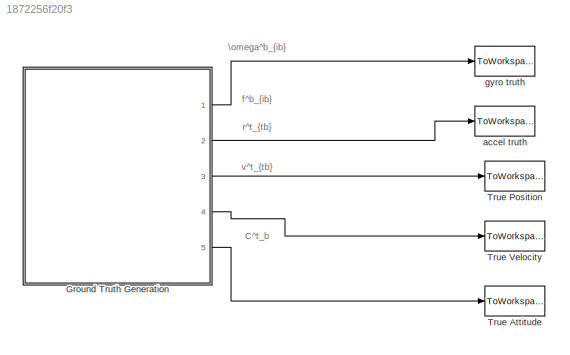
MODEL slx_1872256f20f3
KIND model
CONFIG AbsTol = auto
CONFIG EnableMultiTasking = on
CONFIG FixedStep = constants.dt
CONFIG MaxStep = auto
CONFIG MinStep = auto
CONFIG RelTol = 1e-3
CONFIG SampleTimeConstraint = Unconstrained
CONFIG Solver = ode1
CONFIG SolverName = ode1
CONFIG StartTime = 0.0
CONFIG StopTime = constants.t_end
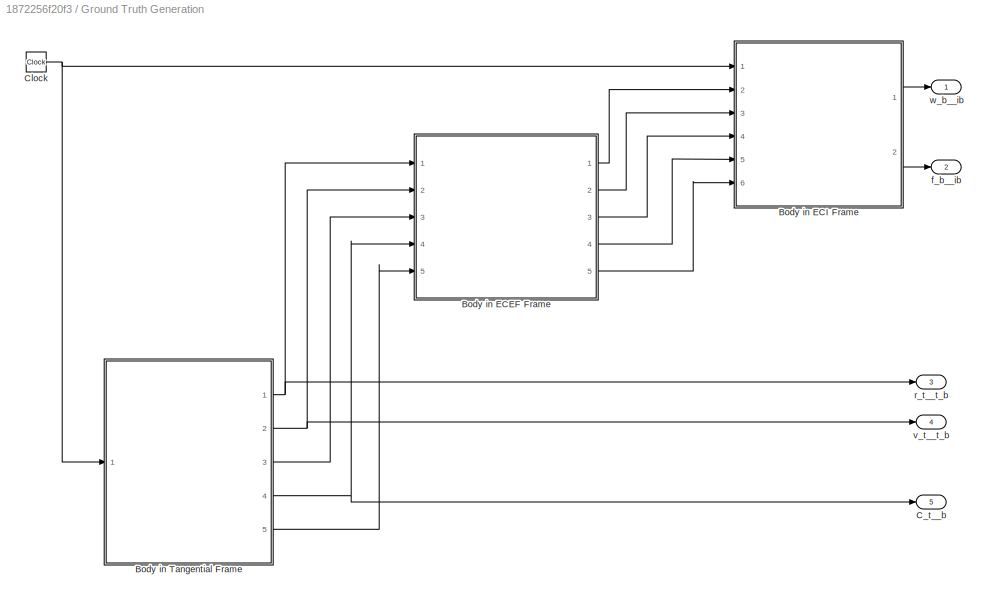
BLOCK [SubSystem] Ground Truth Generation
  Ports = [0, 5]
  RequestExecContextInheritance = off
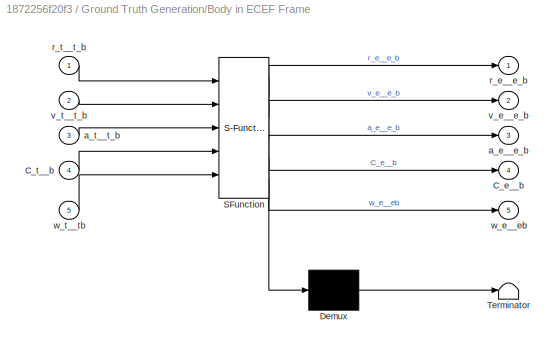
BLOCK [SubSystem] Ground Truth Generation/Body in ECEF Frame
  ErrorFcn = Stateflow.Translate.translate
  PermitHierarchicalResolution = ExplicitOnly
  Ports = [5, 5]
  RequestExecContextInheritance = off
  SFBlockType = MATLAB Function
  TreatAsAtomicUnit = on
BLOCK [Demux] Ground Truth Generation/Body in ECEF Frame/ Demux 
  Outputs = 1
  Ports = [1, 1]
BLOCK [S-Function] Ground Truth Generation/Body in ECEF Frame/ SFunction 
  EnableBusSupport = off
  FunctionName = sf_sfun
  Parameters = constants
  PortCounts = [5 6]
  Ports = [5, 6]
  SFcnIsStateOwnerBlock = off
  SFunctionDeploymentMode = off
  Tag = Stateflow S-Function Ground_Path 1
BLOCK [Terminator] Ground Truth Generation/Body in ECEF Frame/ Terminator 
BLOCK [Outport] Ground Truth Generation/Body in ECEF Frame/C_e__b
  IconDisplay = Port number
  Port = 4
  VectorParamsAs1DForOutWhenUnconnected = off
BLOCK [Inport] Ground Truth Generation/Body in ECEF Frame/C_t__b
  IconDisplay = Port number
  Port = 4
BLOCK [Outport] Ground Truth Generation/Body in ECEF Frame/a_e__e_b
  IconDisplay = Port number
  Port = 3
  VectorParamsAs1DForOutWhenUnconnected = off
BLOCK [Inport] Ground Truth Generation/Body in ECEF Frame/a_t__t_b
  IconDisplay = Port number
  Port = 3
BLOCK [Outport] Ground Truth Generation/Body in ECEF Frame/r_e__e_b
  IconDisplay = Port number
  VectorParamsAs1DForOutWhenUnconnected = off
BLOCK [Inport] Ground Truth Generation/Body in ECEF Frame/r_t__t_b
  IconDisplay = Port number
BLOCK [Outport] Ground Truth Generation/Body in ECEF Frame/v_e__e_b
  IconDisplay = Port number
  Port = 2
  VectorParamsAs1DForOutWhenUnconnected = off
BLOCK [Inport] Ground Truth Generation/Body in ECEF Frame/v_t__t_b
  IconDisplay = Port number
  Port = 2
BLOCK [Outport] Ground Truth Generation/Body in ECEF Frame/w_e__eb
  IconDisplay = Port number
  Port = 5
  VectorParamsAs1DForOutWhenUnconnected = off
BLOCK [Inport] Ground Truth Generation/Body in ECEF Frame/w_t__tb
  IconDisplay = Port number
  Port = 5
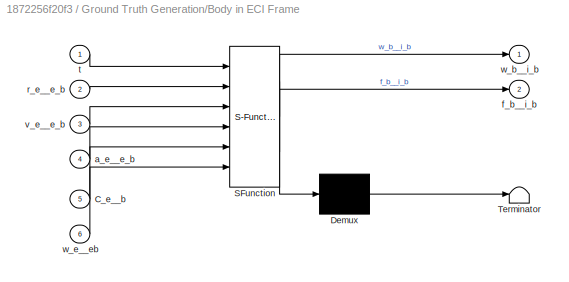
BLOCK [SubSystem] Ground Truth Generation/Body in ECI Frame
  ErrorFcn = Stateflow.Translate.translate
  PermitHierarchicalResolution = ExplicitOnly
  Ports = [6, 2]
  RequestExecContextInheritance = off
  SFBlockType = MATLAB Function
  TreatAsAtomicUnit = on
BLOCK [Demux] Ground Truth Generation/Body in ECI Frame/ Demux 
  Outputs = 1
  Ports = [1, 1]
BLOCK [S-Function] Ground Truth Generation/Body in ECI Frame/ SFunction 
  EnableBusSupport = off
  FunctionName = sf_sfun
  Parameters = constants
  PortCounts = [6 3]
  Ports = [6, 3]
  SFcnIsStateOwnerBlock = off
  SFunctionDeploymentMode = off
  Tag = Stateflow S-Function Ground_Path 3
BLOCK [Terminator] Ground Truth Generation/Body in ECI Frame/ Terminator 
BLOCK [Inport] Ground Truth Generation/Body in ECI Frame/C_e__b
  IconDisplay = Port number
  Port = 5
BLOCK [Inport] Ground Truth Generation/Body in ECI Frame/a_e__e_b
  IconDisplay = Port number
  Port = 4
BLOCK [Outport] Ground Truth Generation/Body in ECI Frame/f_b__i_b
  IconDisplay = Port number
  Port = 2
  VectorParamsAs1DForOutWhenUnconnected = off
BLOCK [Inport] Ground Truth Generation/Body in ECI Frame/r_e__e_b
  IconDisplay = Port number
  Port = 2
BLOCK [Inport] Ground Truth Generation/Body in ECI Frame/t
  IconDisplay = Port number
BLOCK [Inport] Ground Truth Generation/Body in ECI Frame/v_e__e_b
  IconDisplay = Port number
  Port = 3
BLOCK [Outport] Ground Truth Generation/Body in ECI Frame/w_b__i_b
  IconDisplay = Port number
  VectorParamsAs1DForOutWhenUnconnected = off
BLOCK [Inport] Ground Truth Generation/Body in ECI Frame/w_e__eb
  IconDisplay = Port number
  Port = 6
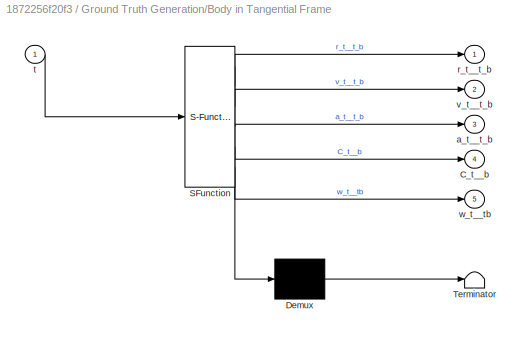
BLOCK [SubSystem] Ground Truth Generation/Body in Tangential Frame
  ErrorFcn = Stateflow.Translate.translate
  PermitHierarchicalResolution = ExplicitOnly
  Ports = [1, 5]
  RequestExecContextInheritance = off
  SFBlockType = MATLAB Function
  TreatAsAtomicUnit = on
BLOCK [Demux] Ground Truth Generation/Body in Tangential Frame/ Demux 
  Outputs = 1
  Ports = [1, 1]
BLOCK [S-Function] Ground Truth Generation/Body in Tangential Frame/ SFunction 
  EnableBusSupport = off
  FunctionName = sf_sfun
  Parameters = constants
  PortCounts = [1 6]
  Ports = [1, 6]
  SFcnIsStateOwnerBlock = off
  SFunctionDeploymentMode = off
  Tag = Stateflow S-Function Ground_Path 7
BLOCK [Terminator] Ground Truth Generation/Body in Tangential Frame/ Terminator 
BLOCK [Outport] Ground Truth Generation/Body in Tangential Frame/C_t__b
  IconDisplay = Port number
  Port = 4
  VectorParamsAs1DForOutWhenUnconnected = off
BLOCK [Outport] Ground Truth Generation/Body in Tangential Frame/a_t__t_b
  IconDisplay = Port number
  Port = 3
  VectorParamsAs1DForOutWhenUnconnected = off
BLOCK [Outport] Ground Truth Generation/Body in Tangential Frame/r_t__t_b
  IconDisplay = Port number
  VectorParamsAs1DForOutWhenUnconnected = off
BLOCK [Inport] Ground Truth Generation/Body in Tangential Frame/t
  IconDisplay = Port number
BLOCK [Outport] Ground Truth Generation/Body in Tangential Frame/v_t__t_b
  IconDisplay = Port number
  Port = 2
  VectorParamsAs1DForOutWhenUnconnected = off
BLOCK [Outport] Ground Truth Generation/Body in Tangential Frame/w_t__tb
  IconDisplay = Port number
  Port = 5
  VectorParamsAs1DForOutWhenUnconnected = off
BLOCK [Outport] Ground Truth Generation/C_t__b
  IconDisplay = Port number
  Port = 5
  VectorParamsAs1DForOutWhenUnconnected = off
BLOCK [Clock] Ground Truth Generation/Clock
BLOCK [Outport] Ground Truth Generation/f_b__ib
  IconDisplay = Port number
  Port = 2
  VectorParamsAs1DForOutWhenUnconnected = off
BLOCK [Outport] Ground Truth Generation/r_t__t_b
  IconDisplay = Port number
  Port = 3
  VectorParamsAs1DForOutWhenUnconnected = off
BLOCK [Outport] Ground Truth Generation/v_t__t_b
  IconDisplay = Port number
  Port = 4
  VectorParamsAs1DForOutWhenUnconnected = off
BLOCK [Outport] Ground Truth Generation/w_b__ib
  IconDisplay = Port number
  VectorParamsAs1DForOutWhenUnconnected = off
BLOCK [ToWorkspace] True Attitude
  FixptAsFi = on
  MaxDataPoints = inf
  Ports = [1]
  SampleTime = -1
  VariableName = A_truth
BLOCK [ToWorkspace] True Position
  FixptAsFi = on
  MaxDataPoints = inf
  Ports = [1]
  SampleTime = -1
  VariableName = P_truth
BLOCK [ToWorkspace] True Velocity
  FixptAsFi = on
  MaxDataPoints = inf
  Ports = [1]
  SampleTime = -1
  VariableName = V_truth
BLOCK [ToWorkspace] accel truth
  FixptAsFi = on
  MaxDataPoints = inf
  Ports = [1]
  SampleTime = -1
  VariableName = f_b__i_b
BLOCK [ToWorkspace] gyro truth
  FixptAsFi = on
  MaxDataPoints = inf
  Ports = [1]
  SampleTime = -1
  VariableName = w_b__i_b
ANNOTATION (root): C^t_b
ANNOTATION (root): \omega^b_{ib}
ANNOTATION (root): f^b_{ib}
ANNOTATION (root): r^t_{tb}
ANNOTATION (root): v^t_{tb}
LINE Ground Truth Generation/Body in ECEF Frame:1 -> Ground Truth Generation/Body in ECI Frame:2
LINE Ground Truth Generation/Body in ECEF Frame:2 -> Ground Truth Generation/Body in ECI Frame:3
LINE Ground Truth Generation/Body in ECEF Frame:3 -> Ground Truth Generation/Body in ECI Frame:4
LINE Ground Truth Generation/Body in ECEF Frame:4 -> Ground Truth Generation/Body in ECI Frame:5
LINE Ground Truth Generation/Body in ECEF Frame:5 -> Ground Truth Generation/Body in ECI Frame:6
LINE Ground Truth Generation/Body in ECI Frame:1 -> Ground Truth Generation/w_b__ib:1
LINE Ground Truth Generation/Body in ECI Frame:2 -> Ground Truth Generation/f_b__ib:1
NET Ground Truth Generation/Body in Tangential Frame:1 -> Ground Truth Generation/Body in ECEF Frame:1, Ground Truth Generation/r_t__t_b:1
NET Ground Truth Generation/Body in Tangential Frame:2 -> Ground Truth Generation/Body in ECEF Frame:2, Ground Truth Generation/v_t__t_b:1
LINE Ground Truth Generation/Body in Tangential Frame:3 -> Ground Truth Generation/Body in ECEF Frame:3
NET Ground Truth Generation/Body in Tangential Frame:4 -> Ground Truth Generation/Body in ECEF Frame:4, Ground Truth Generation/C_t__b:1
LINE Ground Truth Generation/Body in Tangential Frame:5 -> Ground Truth Generation/Body in ECEF Frame:5
NET Ground Truth Generation/Clock:1 -> Ground Truth Generation/Body in ECI Frame:1, Ground Truth Generation/Body in Tangential Frame:1
LINE Ground Truth Generation:1 -> gyro truth:1
LINE Ground Truth Generation:2 -> accel truth:1
LINE Ground Truth Generation:3 -> True Position:1
LINE Ground Truth Generation:4 -> True Velocity:1
LINE Ground Truth Generation:5 -> True Attitude:1
note: NET lines group one-source signal fan-out (src -> all destinations, sorted); 1:1 wires keep LINE
CHART Ground Truth Generation/Body in ECEF Frame states=1 transitions=1
  STATE_LABEL 'eML_blk_kernel()'
  STATE_LABEL 'SCRIPT:\nfunction [r_e__e_b, v_e__e_b, a_e__e_b, C_e__b, w_e__eb] = Tan_to_ECEF(r_t__t_b, v_t__t_b, a_t__t_b, C_t__b, w_t__tb, constants)\n%#codegen\n%\n% FUNCTION DESCRIPTION:\n%   Propagates quantities from the NAV to BODY coordinate frame\n%\n% INPUTS:\n%   r_t__t_b = Position         of {b} wrt {t} resolved in {t} (m)\n%   v_t__t_b = Velocity         of {b} wrt {t} resolved in {t} (m/s)\n%   a_t__t_b = ...<+1435ch>'
CHART Ground Truth Generation/Body in ECI Frame states=1 transitions=1
  STATE_LABEL 'eML_blk_kernel()'
  STATE_LABEL 'SCRIPT:\nfunction [w_b__i_b, f_b__i_b] = ECEF_to_ECI(t, r_e__e_b, v_e__e_b, a_e__e_b, C_e__b, w_e__eb, constants)\n%#codegen\n%\n% FUNCTION DESCRIPTION:\n%   Propagates quantities from the NAV to BODY coordinate frame\n%\n% INPUTS:\n%   r_e__e_b = Position         of {b} wrt {e} resolved in {e} (m)\n%   v_e__e_b = Velocity         of {b} wrt {e} resolved in {e} (m/s)\n%   a_e__e_b = Acceleration     of {b} ...<+2130ch>'
CHART Ground Truth Generation/Body in Tangential Frame states=1 transitions=1
  STATE_LABEL 'eML_blk_kernel()'
  STATE_LABEL 'SCRIPT:\nfunction [r_t__t_b, v_t__t_b, a_t__t_b, C_t__b, w_t__tb] = Body_in_Tan(t, constants)\n%#codegen\n%\n% FUNCTION DESCRIPTION:\n%   Propagates quantities from the NAV to BODY coordinate frame\n%\n% INPUTS:\n%   t_sec    = Time (sec)\n%   constants= A structure containing various constant parameters\n%\n% OUTPUTS:\n%   r_t__t_b = Position         of {b} wrt {t} resolved in {t} (m)\n%   v_t__t_b = Velocity...<+2807ch>'
